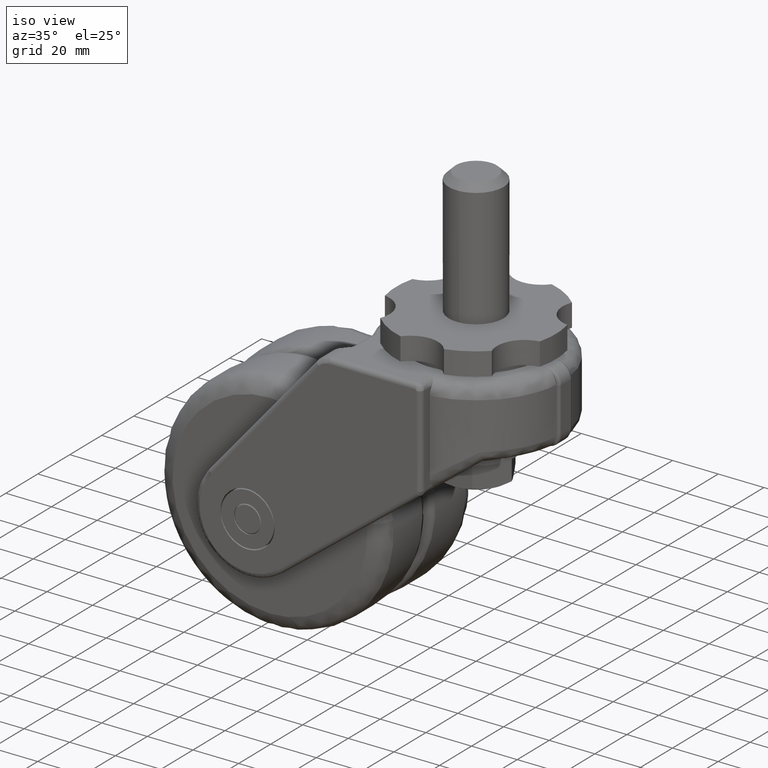
[diagram: clean part render]
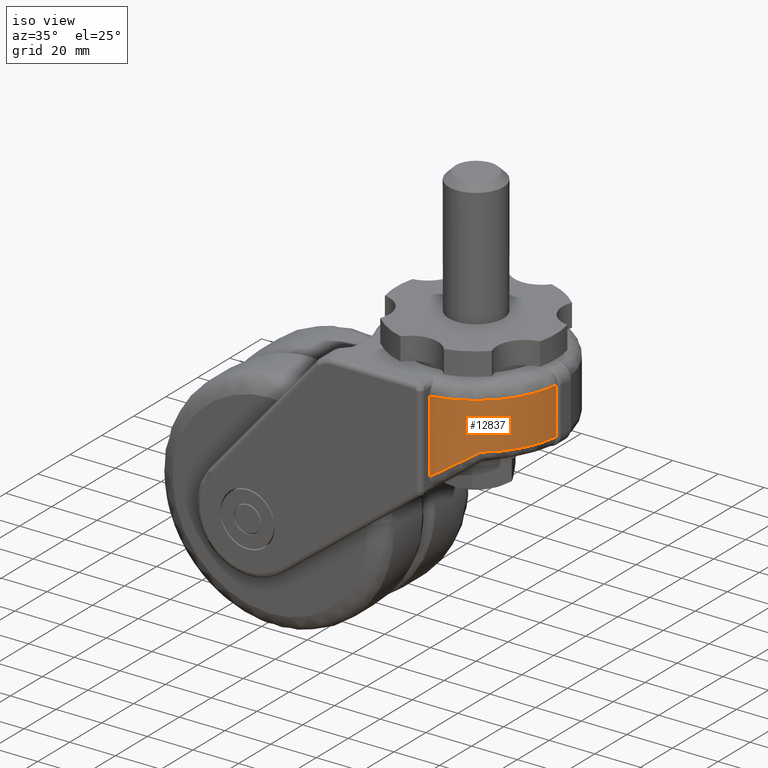
[diagram: same view with one face highlighted and labeled with its STEP entity id]
A machine part, iso view. The second image highlights one B-rep face of the part: STEP entity #12837.
In plain terms, the highlighted face is a freeform B-spline surface patch.
Its self-contained STEP definition (entity closure, byte-faithful):
#8468=CARTESIAN_POINT('',(37.788887255382363,-4.0,-35.500000000000000));
#8469=VERTEX_POINT('',#8468);
#8486=CARTESIAN_POINT('',(37.788887255382363,-4.0,-15.0));
#8487=VERTEX_POINT('',#8486);
#8507=CARTESIAN_POINT('',(37.788887255382363,-4.0,-35.500000000000000));
#8508=CARTESIAN_POINT('',(37.788887255382363,-4.0,-15.0));
#8509=QUASI_UNIFORM_CURVE('',1,(#8507,#8508),.UNSPECIFIED.,.F.,.U.);
#8510=EDGE_CURVE('',#8469,#8487,#8509,.T.);
#8776=CARTESIAN_POINT('',(22.936781410839949,-30.296931503228951,-35.500000000000000));
#8777=VERTEX_POINT('',#8776);
#8778=CARTESIAN_POINT('',(22.936781410839949,-30.296931503228951,-35.500000000000000));
#8779=CARTESIAN_POINT('',(36.056708288509583,-20.364278921325056,-35.500000000000007));
#8780=CARTESIAN_POINT('',(37.788887255382370,-4.000000000000008,-35.500000000000000));
#8788=(BOUNDED_CURVE()B_SPLINE_CURVE(2,(#8778,#8779,#8780),.UNSPECIFIED.,.F.,.U.)CURVE()GEOMETRIC_REPRESENTATION_ITEM()QUASI_UNIFORM_CURVE()RATIONAL_B_SPLINE_CURVE((1.0,0.917652214148558,1.0))REPRESENTATION_ITEM(''));
#8789=EDGE_CURVE('',#8777,#8469,#8788,.T.);
#8927=CARTESIAN_POINT('',(6.0,-37.523326078587452,-46.821699473540797));
#8928=VERTEX_POINT('',#8927);
#8929=CARTESIAN_POINT('',(5.999999999999893,-37.523326078587452,-46.821699473540939));
#8930=CARTESIAN_POINT('',(15.370715981637552,-36.024943558549893,-40.557674000076084));
#8931=CARTESIAN_POINT('',(22.936781410839931,-30.296931503228951,-35.500000000000071));
#8939=(BOUNDED_CURVE()B_SPLINE_CURVE(2,(#8929,#8930,#8931),.UNSPECIFIED.,.F.,.U.)CURVE()GEOMETRIC_REPRESENTATION_ITEM()QUASI_UNIFORM_CURVE()RATIONAL_B_SPLINE_CURVE((1.0,0.970204009524502,1.0))REPRESENTATION_ITEM(''));
#8940=EDGE_CURVE('',#8928,#8777,#8939,.T.);
#12465=CARTESIAN_POINT('',(5.999999811785981,-37.523326108682937,-15.0));
#12466=VERTEX_POINT('',#12465);
#12480=CARTESIAN_POINT('',(5.999999811785957,-37.523326108682959,-15.0));
#12481=CARTESIAN_POINT('',(34.726619328155884,-32.929924361933708,-14.999999999999998));
#12482=CARTESIAN_POINT('',(37.788887255382370,-3.999999999999996,-15.0));
#12490=(BOUNDED_CURVE()B_SPLINE_CURVE(2,(#12480,#12481,#12482),.UNSPECIFIED.,.F.,.U.)CURVE()GEOMETRIC_REPRESENTATION_ITEM()QUASI_UNIFORM_CURVE()RATIONAL_B_SPLINE_CURVE((1.0,0.794027790366855,1.0))REPRESENTATION_ITEM(''));
#12491=EDGE_CURVE('',#12466,#8487,#12490,.T.);
#12699=CARTESIAN_POINT('',(5.999999811785981,-37.523326108682937,-15.0));
#12700=CARTESIAN_POINT('',(6.0,-37.523326078587452,-46.821699473540797));
#12701=QUASI_UNIFORM_CURVE('',1,(#12699,#12700),.UNSPECIFIED.,.F.,.U.);
#12702=EDGE_CURVE('',#12466,#8928,#12701,.T.);
#12816=CARTESIAN_POINT('',(37.889431376060450,-2.896720559323005,-47.617241960379317));
#12817=CARTESIAN_POINT('',(37.889431376060450,-2.896720559323005,-14.184568950990521));
#12818=CARTESIAN_POINT('',(35.458794223108875,-34.689728452492204,-47.617241960379303));
#12819=CARTESIAN_POINT('',(35.458794223108875,-34.689728452492204,-14.184568950990521));
#12820=CARTESIAN_POINT('',(3.726717846157936,-37.816816022705133,-47.617241960379317));
#12821=CARTESIAN_POINT('',(3.726717846157936,-37.816816022705133,-14.184568950990521));
#12829=(BOUNDED_SURFACE()B_SPLINE_SURFACE(1,2,((#12816,#12818,#12820),(#12817,#12819,#12821)),.UNSPECIFIED.,.F.,.F.,.U.)B_SPLINE_SURFACE_WITH_KNOTS((2,2),(3,3),(0.0,33.432673009388800),(0.0,55.323475608462758),.UNSPECIFIED.)GEOMETRIC_REPRESENTATION_ITEM()RATIONAL_B_SPLINE_SURFACE(((1.0,0.766044443118978,1.0),(1.0,0.766044443118978,1.0)))REPRESENTATION_ITEM('')SURFACE());
#12830=ORIENTED_EDGE('',*,*,#8789,.T.);
#12831=ORIENTED_EDGE('',*,*,#8510,.T.);
#12832=ORIENTED_EDGE('',*,*,#12491,.F.);
#12833=ORIENTED_EDGE('',*,*,#12702,.T.);
#12834=ORIENTED_EDGE('',*,*,#8940,.T.);
#12835=EDGE_LOOP('',(#12830,#12831,#12832,#12833,#12834));
#12836=FACE_OUTER_BOUND('',#12835,.T.);
#12837=ADVANCED_FACE('',(#12836),#12829,.T.);